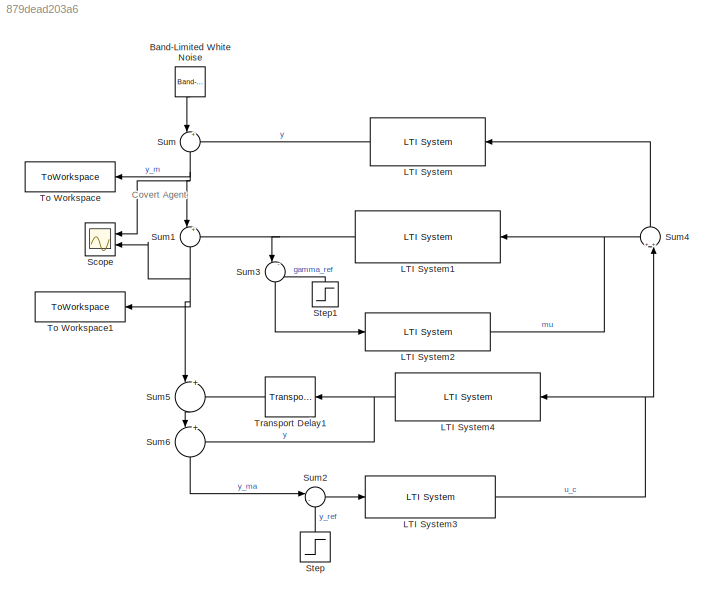
MODEL slx_879dead203a6
KIND model
CONFIG AbsTol = auto
CONFIG EnableMultiTasking = off
CONFIG MaxStep = auto
CONFIG MinStep = auto
CONFIG RelTol = 1e-3
CONFIG SampleTimeConstraint = Unconstrained
CONFIG SolverName = VariableStepAuto
CONFIG StartTime = 0.0
CONFIG StopTime = 610
BLOCK [Reference] Band-Limited White Noise  REF=simulink/Sources/Band-Limited
White Noise
  NameLocation = left
  Ports = [0, 1]
  SourceBlock = simulink/Sources/Band-Limited\nWhite Noise
  SourceType = Band-Limited White Noise.
BLOCK [Reference] LTI System  REF=cstblocks/LTI System
  NameLocation = top
  Ports = [1, 1]
  SourceBlock = cstblocks/LTI System
  SourceType = LTI Block
BLOCK [Reference] LTI System1  REF=cstblocks/LTI System
  NameLocation = top
  Ports = [1, 1]
  SourceBlock = cstblocks/LTI System
  SourceType = LTI Block
BLOCK [Reference] LTI System2  REF=cstblocks/LTI System
  Ports = [1, 1]
  SourceBlock = cstblocks/LTI System
  SourceType = LTI Block
BLOCK [Reference] LTI System3  REF=cstblocks/LTI System
  Ports = [1, 1]
  SourceBlock = cstblocks/LTI System
  SourceType = LTI Block
BLOCK [Reference] LTI System4  REF=cstblocks/LTI System
  NameLocation = top
  Ports = [1, 1]
  SourceBlock = cstblocks/LTI System
  SourceType = LTI Block
BLOCK [Scope] Scope
  Floating = off
  NameLocation = top
  NumInputPorts = 2
  Ports = [2]
  ScopeSpecificationString = Simulink.scopes.TimeScopeBlockCfg('CurrentConfiguration', extmgr.ConfigurationSet(extmgr.Configuration('Core','General UI',true),extmgr.Configuration('Core','Source UI',true),extmgr.Configuration('Sources','WiredSimulink',true),extmgr.Configuration('Visuals','Time Domain',true,'SerializedDisplays',{struct('MinYLimReal','-0.10143','MaxYLimReal','0.91283','YLabelReal','','MinYLimMag','0.00000','MaxY...<+1466ch>
BLOCK [Step] Step
  After = params.y_ref_value
  NameLocation = right
  SampleTime = 0
  Time = params.y_ref_start
BLOCK [Step] Step1
  After = params.gamma_ref_value
  NameLocation = right
  SampleTime = 0
  Time = params.gamma_ref_start
BLOCK [Sum] Sum
  Inputs = |++
  NameLocation = left
  Ports = [2, 1]
BLOCK [Sum] Sum1
  Inputs = |+-
  NameLocation = left
  Ports = [2, 1]
BLOCK [Sum] Sum2
  Inputs = |-+
  Ports = [2, 1]
BLOCK [Sum] Sum3
  Inputs = |-+
  NameLocation = left
  Ports = [2, 1]
BLOCK [Sum] Sum4
  Inputs = ++|
  NameLocation = left
  Ports = [2, 1]
BLOCK [Sum] Sum5
  Inputs = |+-
  NameLocation = left
  Ports = [2, 1]
BLOCK [Sum] Sum6
  Inputs = |++
  NameLocation = left
  Ports = [2, 1]
BLOCK [ToWorkspace] To Workspace
  FixptAsFi = on
  MaxDataPoints = inf
  NameLocation = top
  Ports = [1]
  SampleTime = params.Ts
  SaveFormat = Timeseries
  VariableName = y_m
BLOCK [ToWorkspace] To Workspace1
  FixptAsFi = on
  MaxDataPoints = inf
  NameLocation = top
  Ports = [1]
  SampleTime = params.Ts
  SaveFormat = Timeseries
  VariableName = y_ma
BLOCK [TransportDelay] Transport Delay1
  BufferSize = 8192
  DelayTime = 0.29
  NameLocation = top
  Ports = [1, 1]
ANNOTATION (root): Covert Agent
LINE Band-Limited White Noise:1 -> Sum:1
NET LTI System1:1 -> Sum1:2, Sum3:1
NET LTI System2:1 -> LTI System1:1, Sum4:1
NET LTI System3:1 -> LTI System4:1, Sum4:2
NET LTI System4:1 -> Sum6:2, Transport Delay1:1
LINE LTI System:1 -> Sum:2
LINE Step1:1 -> Sum3:2
LINE Step:1 -> Sum2:2
NET Sum1:1 -> Scope:2, Sum5:1, To Workspace1:1
LINE Sum2:1 -> LTI System3:1
LINE Sum3:1 -> LTI System2:1
LINE Sum4:1 -> LTI System:1
LINE Sum5:1 -> Sum6:1
LINE Sum6:1 -> Sum2:1
NET Sum:1 -> Scope:1, Sum1:1, To Workspace:1
LINE Transport Delay1:1 -> Sum5:2
note: NET lines group one-source signal fan-out (src -> all destinations, sorted); 1:1 wires keep LINE
